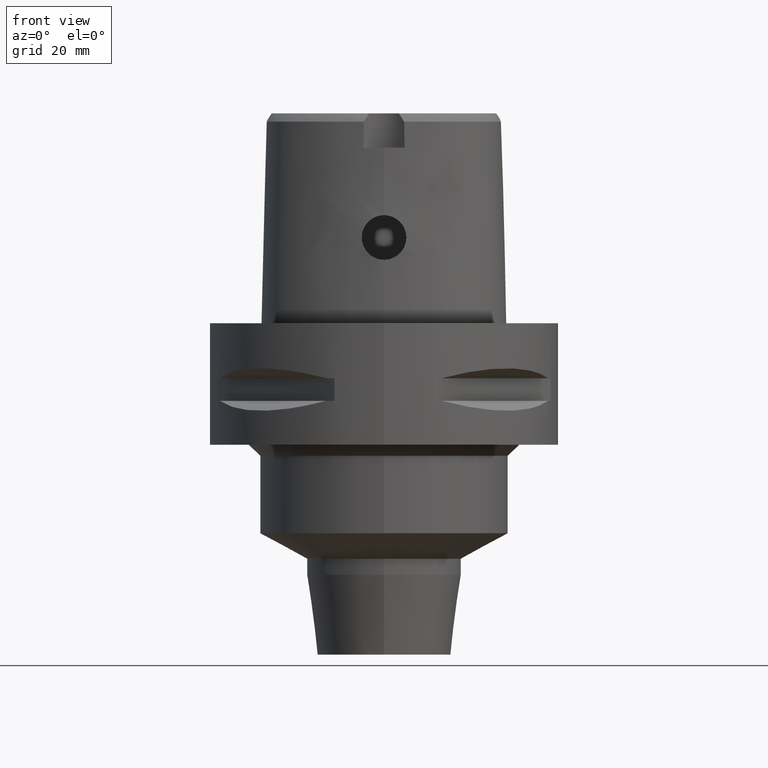
[diagram: clean part render]
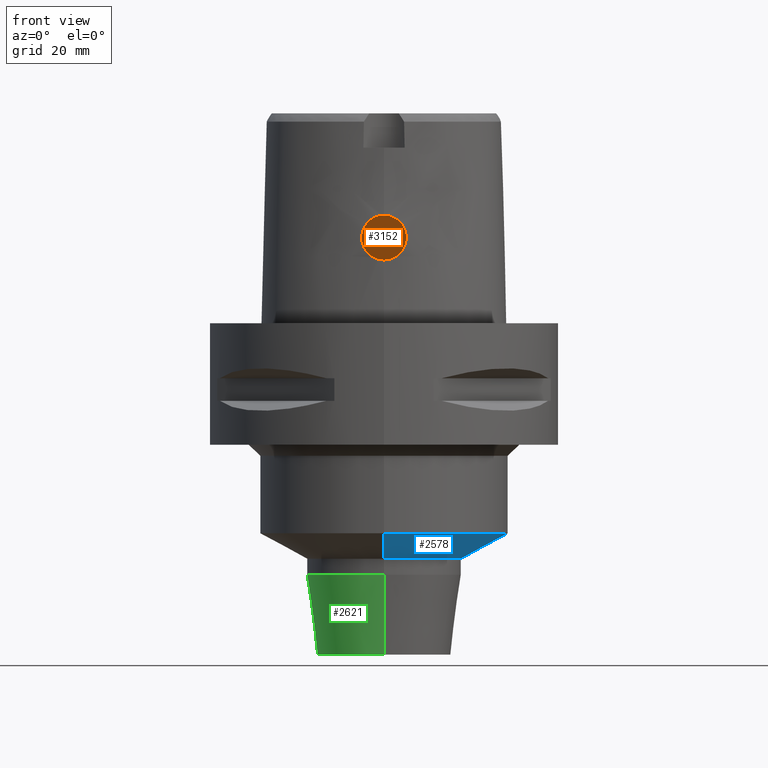
[diagram: same view with three faces highlighted in distinct colors, each labeled with its STEP entity id]
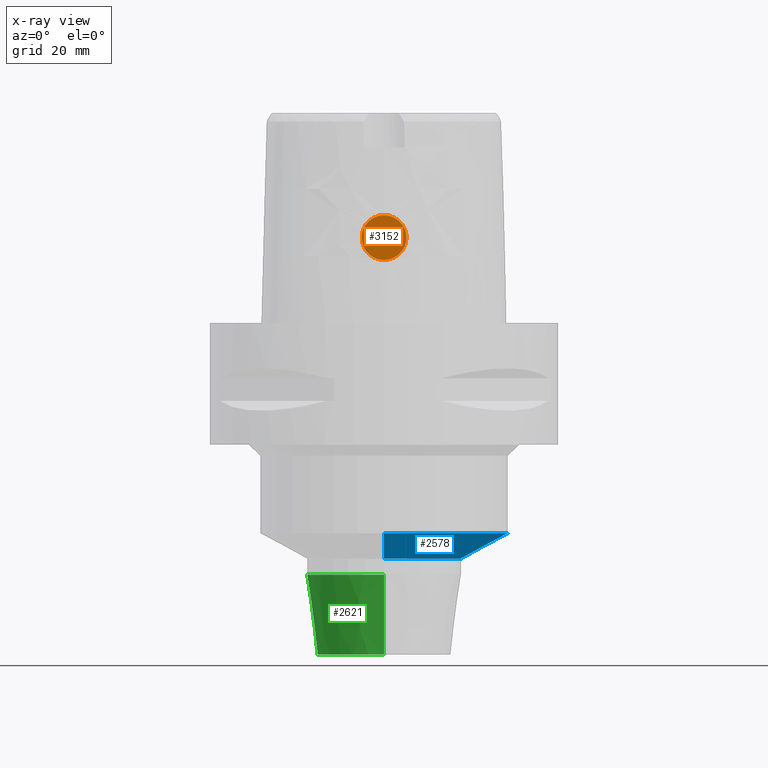
[diagram: x-ray of the same camera — body ghosted, the three highlighted faces saturated]
A machine part, front view with three faces highlighted in distinct colors.
The next image is the same camera in x-ray (body ghosted, the three faces saturated) — at least one of them is partly hidden behind the body in this view.
Their STEP definitions:

[orange] entity #3152 — the highlighted planar face has unit normal (0, 1, 0).
#1218=CARTESIAN_POINT('',(0.E0,1.75E1,1.55E1));
#1219=DIRECTION('',(0.E0,1.E0,0.E0));
#1220=DIRECTION('',(0.E0,0.E0,-1.E0));
#1221=AXIS2_PLACEMENT_3D('',#1218,#1219,#1220);
#1226=CARTESIAN_POINT('',(0.E0,1.75E1,1.55E1));
#1227=DIRECTION('',(0.E0,1.E0,0.E0));
#1228=DIRECTION('',(0.E0,0.E0,1.E0));
#1229=AXIS2_PLACEMENT_3D('',#1226,#1227,#1228);
#1665=CARTESIAN_POINT('',(0.E0,1.75E1,1.145E1));
#1666=VERTEX_POINT('',#1665);
#1667=CARTESIAN_POINT('',(0.E0,1.75E1,1.955E1));
#1668=VERTEX_POINT('',#1667);
#3143=CARTESIAN_POINT('',(0.E0,1.75E1,0.E0));
#3144=DIRECTION('',(0.E0,1.E0,0.E0));
#3145=DIRECTION('',(0.E0,0.E0,-1.E0));
#3146=AXIS2_PLACEMENT_3D('',#3143,#3144,#3145);
#3147=PLANE('',#3146);
#3148=ORIENTED_EDGE('',*,*,#2830,.T.);
#3149=ORIENTED_EDGE('',*,*,#2813,.T.);
#3150=EDGE_LOOP('',(#3148,#3149));
#3151=FACE_OUTER_BOUND('',#3150,.F.);
#1222=CIRCLE('',#1221,4.05E0);
#1230=CIRCLE('',#1229,4.05E0);
#2813=EDGE_CURVE('',#1668,#1666,#1230,.T.);
#2830=EDGE_CURVE('',#1666,#1668,#1222,.T.);
#3152=ADVANCED_FACE('',(#3151),#3147,.F.);

[blue] entity #2578 — the highlighted conical surface has half-angle 61.575 deg.
#605=DIRECTION('',(0.E0,8.794409589255E-1,-4.760079828786E-1));
#606=VECTOR('',#605,9.665230978536E0);
#607=CARTESIAN_POINT('',(0.E0,-2.25E1,-3.803627289785E1));
#608=LINE('',#607,#606);
#620=DIRECTION('',(0.E0,-8.794409589255E-1,-4.760079828786E-1));
#621=VECTOR('',#620,9.665230978536E0);
#622=CARTESIAN_POINT('',(0.E0,2.25E1,-3.803627289785E1));
#623=LINE('',#622,#621);
#627=CARTESIAN_POINT('',(0.E0,0.E0,-4.2637E1));
#628=DIRECTION('',(0.E0,0.E0,-1.E0));
#629=DIRECTION('',(0.E0,1.E0,0.E0));
#630=AXIS2_PLACEMENT_3D('',#627,#628,#629);
#635=CARTESIAN_POINT('',(0.E0,0.E0,-3.803627289786E1));
#636=DIRECTION('',(0.E0,0.E0,1.E0));
#637=DIRECTION('',(0.E0,-1.E0,0.E0));
#638=AXIS2_PLACEMENT_3D('',#635,#636,#637);
#1612=CARTESIAN_POINT('',(0.E0,2.25E1,-3.803627289785E1));
#1613=VERTEX_POINT('',#1612);
#1614=CARTESIAN_POINT('',(0.E0,-2.25E1,-3.803627289786E1));
#1615=VERTEX_POINT('',#1614);
#1616=CARTESIAN_POINT('',(0.E0,1.4E1,-4.2637E1));
#1617=VERTEX_POINT('',#1616);
#1618=CARTESIAN_POINT('',(0.E0,-1.4E1,-4.2637E1));
#1619=VERTEX_POINT('',#1618);
#2566=CARTESIAN_POINT('',(0.E0,0.E0,-4.033663644893E1));
#2567=DIRECTION('',(0.E0,0.E0,1.E0));
#2568=DIRECTION('',(0.E0,1.E0,0.E0));
#2569=AXIS2_PLACEMENT_3D('',#2566,#2567,#2568);
#2570=CONICAL_SURFACE('',#2569,1.825E1,6.1575E1);
#2571=ORIENTED_EDGE('',*,*,#2556,.T.);
#2573=ORIENTED_EDGE('',*,*,#2572,.T.);
#2574=ORIENTED_EDGE('',*,*,#2559,.F.);
#2575=ORIENTED_EDGE('',*,*,#2530,.T.);
#2576=EDGE_LOOP('',(#2571,#2573,#2574,#2575));
#2577=FACE_OUTER_BOUND('',#2576,.F.);
#631=CIRCLE('',#630,1.4E1);
#639=CIRCLE('',#638,2.25E1);
#2530=EDGE_CURVE('',#1615,#1613,#639,.T.);
#2556=EDGE_CURVE('',#1613,#1617,#623,.T.);
#2559=EDGE_CURVE('',#1615,#1619,#608,.T.);
#2572=EDGE_CURVE('',#1617,#1619,#631,.T.);
#2578=ADVANCED_FACE('',(#2577),#2570,.T.);

[green] entity #2621 — the highlighted conical surface has half-angle 7.5 deg.
#657=CARTESIAN_POINT('',(0.E0,0.E0,-4.553768416937E1));
#658=DIRECTION('',(0.E0,0.E0,1.E0));
#659=DIRECTION('',(0.E0,1.E0,0.E0));
#660=AXIS2_PLACEMENT_3D('',#657,#658,#659);
#665=DIRECTION('',(0.E0,1.305261922200E-1,-9.914448613738E-1));
#666=VECTOR('',#665,1.458711058383E1);
#667=CARTESIAN_POINT('',(0.E0,-1.4E1,-4.553768416937E1));
#668=LINE('',#667,#666);
#672=DIRECTION('',(0.E0,-1.305261922200E-1,-9.914448613738E-1));
#673=VECTOR('',#672,1.458711058383E1);
#674=CARTESIAN_POINT('',(0.E0,1.4E1,-4.553768416937E1));
#675=LINE('',#674,#673);
#695=CARTESIAN_POINT('',(0.E0,0.E0,-6.E1));
#696=DIRECTION('',(0.E0,0.E0,1.E0));
#697=DIRECTION('',(0.E0,1.E0,0.E0));
#698=AXIS2_PLACEMENT_3D('',#695,#696,#697);
#1620=CARTESIAN_POINT('',(0.E0,1.4E1,-4.553768416937E1));
#1621=VERTEX_POINT('',#1620);
#1622=CARTESIAN_POINT('',(0.E0,-1.4E1,-4.553768416937E1));
#1623=VERTEX_POINT('',#1622);
#1624=CARTESIAN_POINT('',(0.E0,1.2096E1,-6.E1));
#1625=VERTEX_POINT('',#1624);
#1626=CARTESIAN_POINT('',(0.E0,-1.2096E1,-6.E1));
#1627=VERTEX_POINT('',#1626);
#2607=CARTESIAN_POINT('',(0.E0,0.E0,-5.276884208469E1));
#2608=DIRECTION('',(0.E0,0.E0,1.E0));
#2609=DIRECTION('',(0.E0,1.E0,0.E0));
#2610=AXIS2_PLACEMENT_3D('',#2607,#2608,#2609);
#2611=CONICAL_SURFACE('',#2610,1.3048E1,7.5E0);
#2613=ORIENTED_EDGE('',*,*,#2612,.F.);
#2614=ORIENTED_EDGE('',*,*,#2602,.T.);
#2616=ORIENTED_EDGE('',*,*,#2615,.T.);
#2618=ORIENTED_EDGE('',*,*,#2617,.F.);
#2619=EDGE_LOOP('',(#2613,#2614,#2616,#2618));
#2620=FACE_OUTER_BOUND('',#2619,.F.);
#661=CIRCLE('',#660,1.4E1);
#699=CIRCLE('',#698,1.2096E1);
#2602=EDGE_CURVE('',#1621,#1623,#661,.T.);
#2612=EDGE_CURVE('',#1621,#1625,#675,.T.);
#2615=EDGE_CURVE('',#1623,#1627,#668,.T.);
#2617=EDGE_CURVE('',#1625,#1627,#699,.T.);
#2621=ADVANCED_FACE('',(#2620),#2611,.T.);